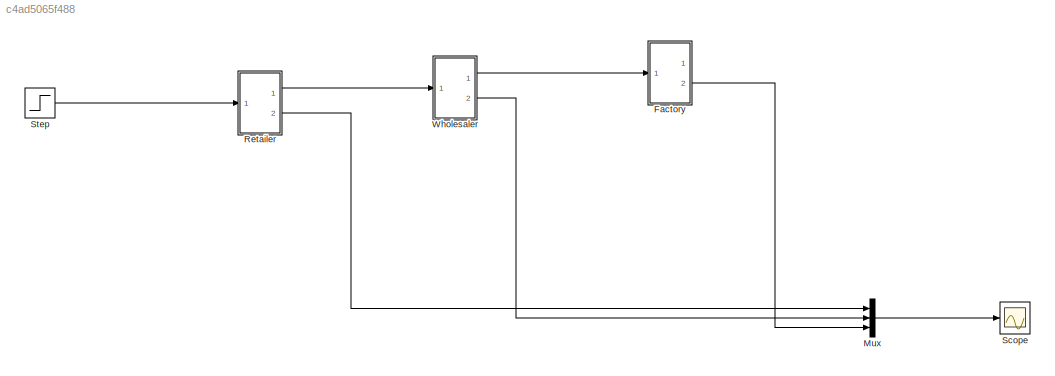
MODEL slx_c4ad5065f488
KIND model
CONFIG AbsTol = auto
CONFIG EnableMultiTasking = off
CONFIG FixedStep = 0.1
CONFIG MaxStep = auto
CONFIG MinStep = auto
CONFIG RelTol = 1e-3
CONFIG SampleTimeConstraint = Unconstrained
CONFIG Solver = ode4
CONFIG SolverName = ode4
CONFIG StartTime = 0.0
CONFIG StopTime = 60
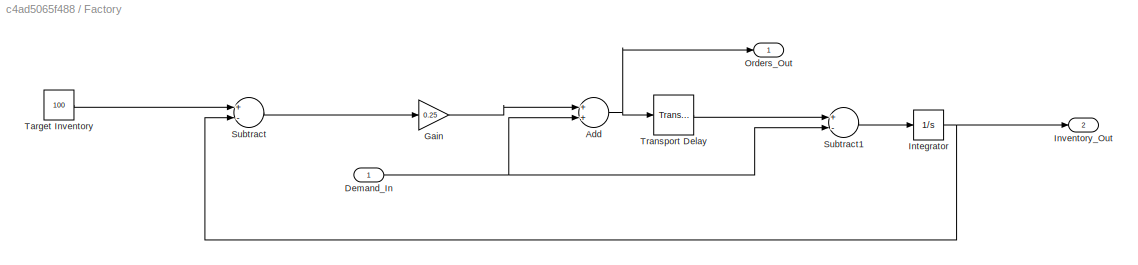
BLOCK [SubSystem] Factory
  Ports = [1, 2]
  RequestExecContextInheritance = off
  Variant = off
BLOCK [Sum] Factory/Add
  InputSameDT = off
  OutDataTypeStr = Inherit: Inherit via internal rule
  Ports = [2, 1]
  SaturateOnIntegerOverflow = off
BLOCK [Inport] Factory/Demand_In 
  IconDisplay = Port number
BLOCK [Gain] Factory/Gain
  Gain = 0.25
  OutDataTypeStr = Inherit: Inherit via internal rule
  ParamDataTypeStr = Inherit: Inherit via internal rule
  SaturateOnIntegerOverflow = off
BLOCK [Integrator] Factory/Integrator
  InitialCondition = 40
  Ports = [1, 1]
BLOCK [Outport] Factory/Inventory_Out 
  IconDisplay = Port number
  Port = 2
BLOCK [Outport] Factory/Orders_Out 
  IconDisplay = Port number
BLOCK [Sum] Factory/Subtract
  InputSameDT = off
  Inputs = +-
  OutDataTypeStr = Inherit: Inherit via internal rule
  Ports = [2, 1]
  SaturateOnIntegerOverflow = off
BLOCK [Sum] Factory/Subtract1
  InputSameDT = off
  Inputs = +-
  OutDataTypeStr = Inherit: Inherit via internal rule
  Ports = [2, 1]
  SaturateOnIntegerOverflow = off
BLOCK [Constant] Factory/Target Inventory 
  Value = 100
BLOCK [TransportDelay] Factory/Transport Delay
  DelayTime = 4
  Ports = [1, 1]
BLOCK [Mux] Mux
  DisplayOption = bar
  Inputs = 3
  Ports = [3, 1]
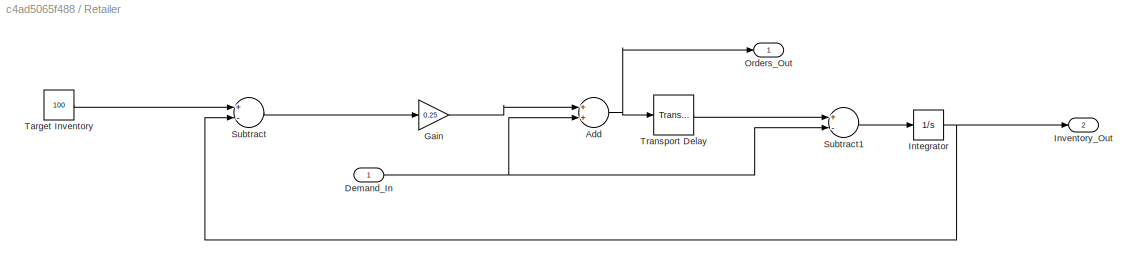
BLOCK [SubSystem] Retailer 
  Ports = [1, 2]
  RequestExecContextInheritance = off
  Variant = off
BLOCK [Sum] Retailer /Add
  InputSameDT = off
  OutDataTypeStr = Inherit: Inherit via internal rule
  Ports = [2, 1]
  SaturateOnIntegerOverflow = off
BLOCK [Inport] Retailer /Demand_In 
  IconDisplay = Port number
BLOCK [Gain] Retailer /Gain
  Gain = 0.25
  OutDataTypeStr = Inherit: Inherit via internal rule
  ParamDataTypeStr = Inherit: Inherit via internal rule
  SaturateOnIntegerOverflow = off
BLOCK [Integrator] Retailer /Integrator
  InitialCondition = 40
  Ports = [1, 1]
BLOCK [Outport] Retailer /Inventory_Out 
  IconDisplay = Port number
  Port = 2
BLOCK [Outport] Retailer /Orders_Out 
  IconDisplay = Port number
BLOCK [Sum] Retailer /Subtract
  InputSameDT = off
  Inputs = +-
  OutDataTypeStr = Inherit: Inherit via internal rule
  Ports = [2, 1]
  SaturateOnIntegerOverflow = off
BLOCK [Sum] Retailer /Subtract1
  InputSameDT = off
  Inputs = +-
  OutDataTypeStr = Inherit: Inherit via internal rule
  Ports = [2, 1]
  SaturateOnIntegerOverflow = off
BLOCK [Constant] Retailer /Target Inventory 
  Value = 100
BLOCK [TransportDelay] Retailer /Transport Delay
  DelayTime = 4
  Ports = [1, 1]
BLOCK [Scope] Scope
  NumInputPorts = 1
  Ports = [1]
  ScopeSpecificationString = Simulink.scopes.TimeScopeBlockCfg('CurrentConfiguration', extmgr.ConfigurationSet(extmgr.Configuration('Core','General UI',true),extmgr.Configuration('Core','Source UI',true),extmgr.Configuration('Sources','WiredSimulink',true),extmgr.Configuration('Visuals','Time Domain',true,'SerializedDisplays',{struct('MinYLimReal','-1899.51399','MaxYLimReal','2035.68399','YLabelReal','','MinYLimMag','  0.0000...<+1410ch>
BLOCK [Step] Step
  After = 80
  Before = 60
  SampleTime = 0
  Time = 30
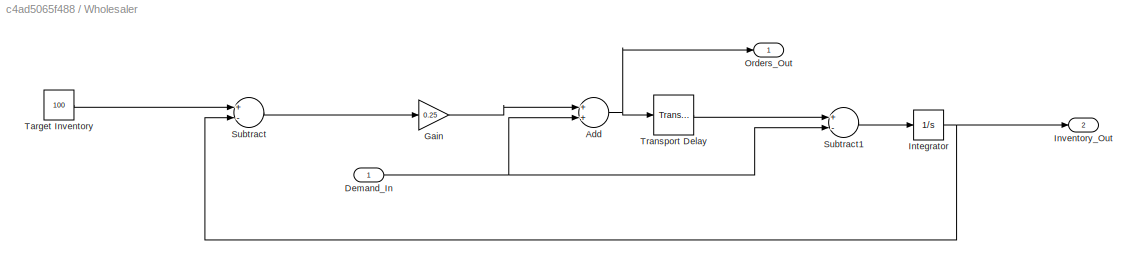
BLOCK [SubSystem] Wholesaler
  Ports = [1, 2]
  RequestExecContextInheritance = off
  Variant = off
BLOCK [Sum] Wholesaler/Add
  InputSameDT = off
  OutDataTypeStr = Inherit: Inherit via internal rule
  Ports = [2, 1]
  SaturateOnIntegerOverflow = off
BLOCK [Inport] Wholesaler/Demand_In 
  IconDisplay = Port number
BLOCK [Gain] Wholesaler/Gain
  Gain = 0.25
  OutDataTypeStr = Inherit: Inherit via internal rule
  ParamDataTypeStr = Inherit: Inherit via internal rule
  SaturateOnIntegerOverflow = off
BLOCK [Integrator] Wholesaler/Integrator
  InitialCondition = 40
  Ports = [1, 1]
BLOCK [Outport] Wholesaler/Inventory_Out 
  IconDisplay = Port number
  Port = 2
BLOCK [Outport] Wholesaler/Orders_Out 
  IconDisplay = Port number
BLOCK [Sum] Wholesaler/Subtract
  InputSameDT = off
  Inputs = +-
  OutDataTypeStr = Inherit: Inherit via internal rule
  Ports = [2, 1]
  SaturateOnIntegerOverflow = off
BLOCK [Sum] Wholesaler/Subtract1
  InputSameDT = off
  Inputs = +-
  OutDataTypeStr = Inherit: Inherit via internal rule
  Ports = [2, 1]
  SaturateOnIntegerOverflow = off
BLOCK [Constant] Wholesaler/Target Inventory 
  Value = 100
BLOCK [TransportDelay] Wholesaler/Transport Delay
  DelayTime = 4
  Ports = [1, 1]
NET Factory/Add:1 -> Factory/Orders_Out :1, Factory/Transport Delay:1
NET Factory/Demand_In :1 -> Factory/Add:2, Factory/Subtract1:2
LINE Factory/Gain:1 -> Factory/Add:1
NET Factory/Integrator:1 -> Factory/Inventory_Out :1, Factory/Subtract:2
LINE Factory/Subtract1:1 -> Factory/Integrator:1
LINE Factory/Subtract:1 -> Factory/Gain:1
LINE Factory/Target Inventory :1 -> Factory/Subtract:1
LINE Factory/Transport Delay:1 -> Factory/Subtract1:1
LINE Factory:2 -> Mux:3
LINE Mux:1 -> Scope:1
NET Retailer /Add:1 -> Retailer /Orders_Out :1, Retailer /Transport Delay:1
NET Retailer /Demand_In :1 -> Retailer /Add:2, Retailer /Subtract1:2
LINE Retailer /Gain:1 -> Retailer /Add:1
NET Retailer /Integrator:1 -> Retailer /Inventory_Out :1, Retailer /Subtract:2
LINE Retailer /Subtract1:1 -> Retailer /Integrator:1
LINE Retailer /Subtract:1 -> Retailer /Gain:1
LINE Retailer /Target Inventory :1 -> Retailer /Subtract:1
LINE Retailer /Transport Delay:1 -> Retailer /Subtract1:1
LINE Retailer :1 -> Wholesaler:1
LINE Retailer :2 -> Mux:1
LINE Step:1 -> Retailer :1
NET Wholesaler/Add:1 -> Wholesaler/Orders_Out :1, Wholesaler/Transport Delay:1
NET Wholesaler/Demand_In :1 -> Wholesaler/Add:2, Wholesaler/Subtract1:2
LINE Wholesaler/Gain:1 -> Wholesaler/Add:1
NET Wholesaler/Integrator:1 -> Wholesaler/Inventory_Out :1, Wholesaler/Subtract:2
LINE Wholesaler/Subtract1:1 -> Wholesaler/Integrator:1
LINE Wholesaler/Subtract:1 -> Wholesaler/Gain:1
LINE Wholesaler/Target Inventory :1 -> Wholesaler/Subtract:1
LINE Wholesaler/Transport Delay:1 -> Wholesaler/Subtract1:1
LINE Wholesaler:1 -> Factory:1
LINE Wholesaler:2 -> Mux:2
note: NET lines group one-source signal fan-out (src -> all destinations, sorted); 1:1 wires keep LINE
